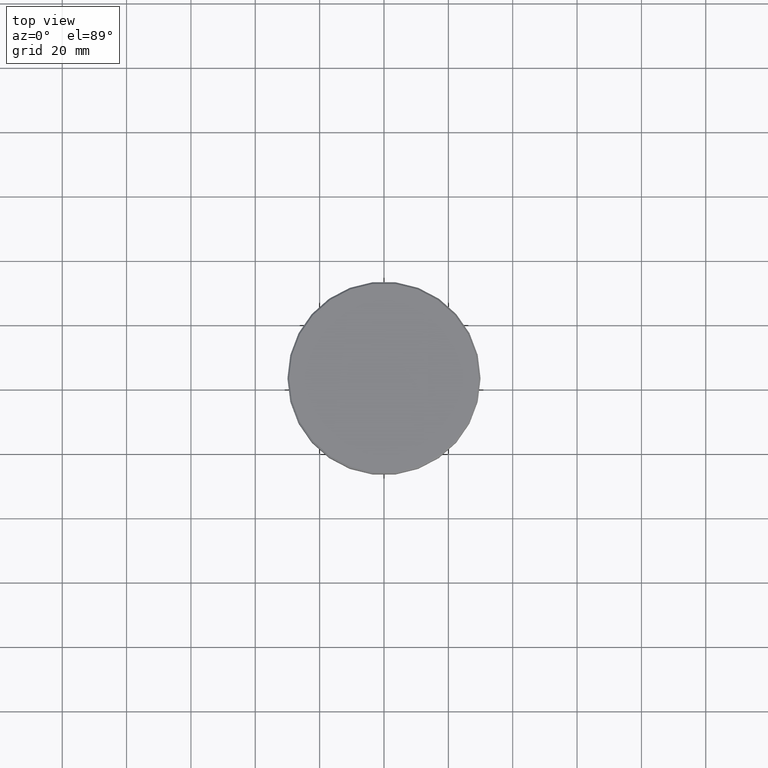
[diagram: clean part render]
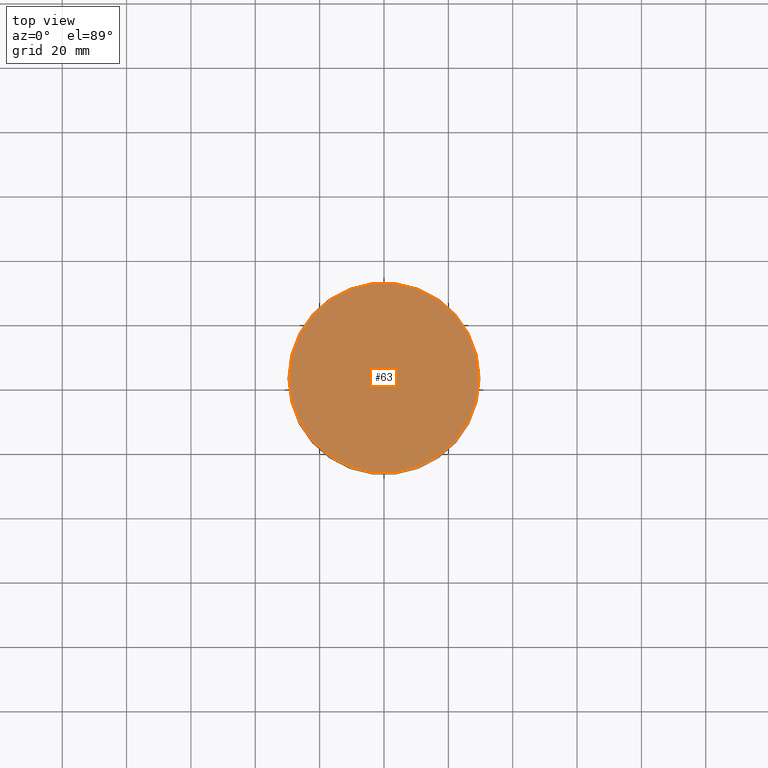
[diagram: same view with one face highlighted and labeled with its STEP entity id]
A machine part, top view. The second image highlights one B-rep face of the part: STEP entity #63.
In plain terms, the highlighted planar face has unit normal (0, -0, 1).
Its self-contained STEP definition (entity closure, byte-faithful):
#11 = AXIS2_PLACEMENT_3D ( 'NONE', #129, #1146, #1047 ) ;
#45 = AXIS2_PLACEMENT_3D ( 'NONE', #212, #398, #105 ) ;
#63 = ADVANCED_FACE ( 'NONE', ( #665 ), #933, .T. ) ;
#93 = DIRECTION ( 'NONE',  ( 1.000000000000000000, 0.000000000000000000, 0.000000000000000000 ) ) ;
#105 = DIRECTION ( 'NONE',  ( 1.000000000000000000, 0.000000000000000000, 0.000000000000000000 ) ) ;
#129 = CARTESIAN_POINT ( 'NONE',  ( 0.000000000000000000, 0.000000000000000000, 0.000000000000000000 ) ) ;
#212 = CARTESIAN_POINT ( 'NONE',  ( 0.000000000000000000, 0.000000000000000000, 0.000000000000000000 ) ) ;
#220 = CARTESIAN_POINT ( 'NONE',  ( 29.50000000000005329, 3.643324227463378546E-15, 0.000000000000000000 ) ) ;
#398 = DIRECTION ( 'NONE',  ( 0.000000000000000000, -0.000000000000000000, 1.000000000000000000 ) ) ;
#471 = CIRCLE ( 'NONE', #715, 29.50000000000005329 ) ;
#523 = CIRCLE ( 'NONE', #11, 29.50000000000005329 ) ;
#549 = DIRECTION ( 'NONE',  ( -0.000000000000000000, -0.000000000000000000, 1.000000000000000000 ) ) ;
#556 = CARTESIAN_POINT ( 'NONE',  ( -29.50000000000005329, 0.000000000000000000, 0.000000000000000000 ) ) ;
#585 = VERTEX_POINT ( 'NONE', #556 ) ;
#662 = CARTESIAN_POINT ( 'NONE',  ( 0.000000000000000000, 0.000000000000000000, 0.000000000000000000 ) ) ;
#665 = FACE_OUTER_BOUND ( 'NONE', #938, .T. ) ;
#715 = AXIS2_PLACEMENT_3D ( 'NONE', #662, #549, #93 ) ;
#731 = ORIENTED_EDGE ( 'NONE', *, *, #1032, .T. ) ;
#746 = EDGE_CURVE ( 'NONE', #783, #585, #523, .T. ) ;
#783 = VERTEX_POINT ( 'NONE', #220 ) ;
#903 = ORIENTED_EDGE ( 'NONE', *, *, #746, .T. ) ;
#933 = PLANE ( 'NONE',  #45 ) ;
#938 = EDGE_LOOP ( 'NONE', ( #731, #903 ) ) ;
#1032 = EDGE_CURVE ( 'NONE', #585, #783, #471, .T. ) ;
#1047 = DIRECTION ( 'NONE',  ( 1.000000000000000000, 0.000000000000000000, 0.000000000000000000 ) ) ;
#1146 = DIRECTION ( 'NONE',  ( -0.000000000000000000, -0.000000000000000000, 1.000000000000000000 ) ) ;